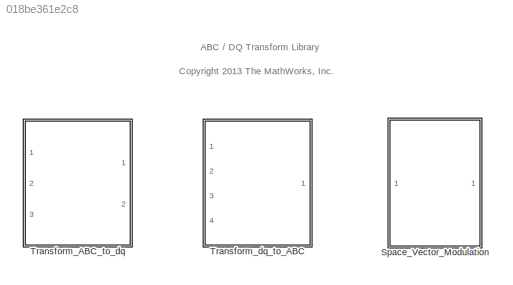
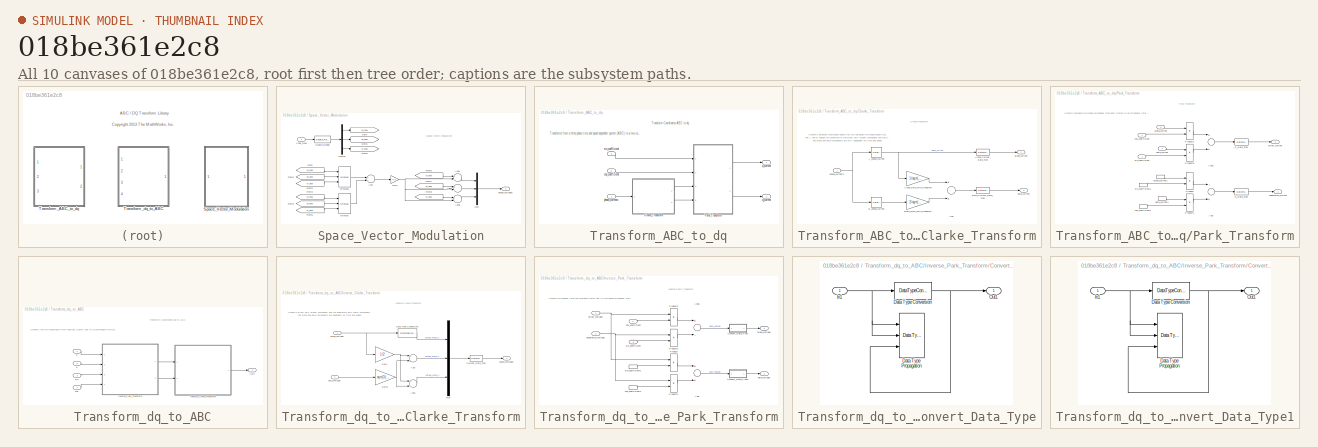
[diagram: thumbnail index - all 10 canvases of the model, root first then tree order]
MODEL slx_018be361e2c8
KIND library
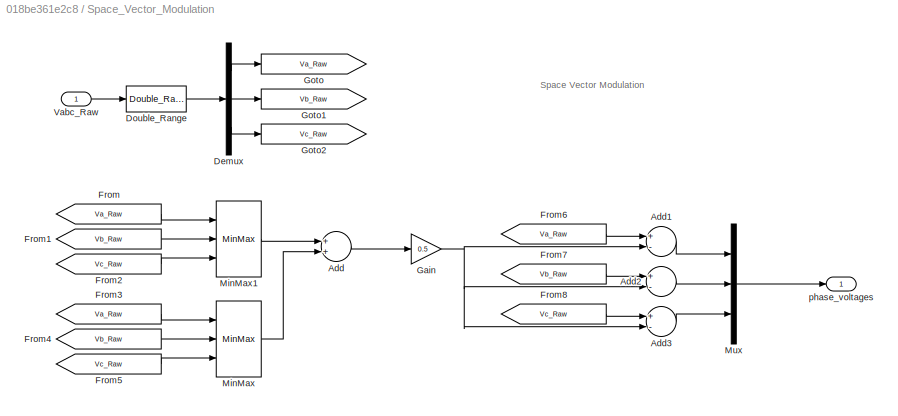
BLOCK [SubSystem] Space_Vector_Modulation
  FunctionWithSeparateData = off
  MaskHideContents = off
  MinAlgLoopOccurrences = off
  Opaque = off
  Ports = [1, 1]
  PropExecContextOutsideSubsystem = off
  RTWSystemCode = Auto
  RequestExecContextInheritance = off
  VariantControl = SpaceVectorModulation_JB
BLOCK [Sum] Space_Vector_Modulation/Add
  InputSameDT = off
  OutDataTypeStr = Inherit: Inherit via internal rule
  Ports = [2, 1]
  SaturateOnIntegerOverflow = off
BLOCK [Sum] Space_Vector_Modulation/Add1
  InputSameDT = off
  Inputs = +-
  OutDataTypeStr = Inherit: Inherit via internal rule
  Ports = [2, 1]
  SaturateOnIntegerOverflow = off
BLOCK [Sum] Space_Vector_Modulation/Add2
  InputSameDT = off
  Inputs = +-
  OutDataTypeStr = Inherit: Inherit via internal rule
  Ports = [2, 1]
  SaturateOnIntegerOverflow = off
BLOCK [Sum] Space_Vector_Modulation/Add3
  InputSameDT = off
  Inputs = +-
  OutDataTypeStr = Inherit: Inherit via internal rule
  Ports = [2, 1]
  SaturateOnIntegerOverflow = off
BLOCK [Demux] Space_Vector_Modulation/Demux
  DisplayOption = bar
  Outputs = 3
  Ports = [1, 3]
BLOCK [Reference] Space_Vector_Modulation/Double_Range  REF=libDataType/Double_Range
  FunctionWithSeparateData = off
  GeneratePreprocessorConditionals = off
  Ports = [1, 1]
  ShowPortLabels = FromPortIcon
  SourceBlock = libDataType/Double_Range
  SystemSampleTime = -1
BLOCK [From] Space_Vector_Modulation/From
  GotoTag = Va_Raw
BLOCK [From] Space_Vector_Modulation/From1
  GotoTag = Vb_Raw
BLOCK [From] Space_Vector_Modulation/From2
  GotoTag = Vc_Raw
BLOCK [From] Space_Vector_Modulation/From3
  GotoTag = Va_Raw
BLOCK [From] Space_Vector_Modulation/From4
  GotoTag = Vb_Raw
BLOCK [From] Space_Vector_Modulation/From5
  GotoTag = Vc_Raw
BLOCK [From] Space_Vector_Modulation/From6
  GotoTag = Va_Raw
BLOCK [From] Space_Vector_Modulation/From7
  GotoTag = Vb_Raw
BLOCK [From] Space_Vector_Modulation/From8
  GotoTag = Vc_Raw
BLOCK [Gain] Space_Vector_Modulation/Gain
  Gain = 0.5
  ParamDataTypeStr = Inherit: Inherit via internal rule
  SaturateOnIntegerOverflow = off
BLOCK [Goto] Space_Vector_Modulation/Goto
  GotoTag = Va_Raw
BLOCK [Goto] Space_Vector_Modulation/Goto1
  GotoTag = Vb_Raw
BLOCK [Goto] Space_Vector_Modulation/Goto2
  GotoTag = Vc_Raw
BLOCK [MinMax] Space_Vector_Modulation/MinMax
  InputSameDT = off
  Inputs = 3
  Ports = [3, 1]
  SaturateOnIntegerOverflow = off
BLOCK [MinMax] Space_Vector_Modulation/MinMax1
  Function = max
  InputSameDT = off
  Inputs = 3
  Ports = [3, 1]
  SaturateOnIntegerOverflow = off
BLOCK [Mux] Space_Vector_Modulation/Mux
  DisplayOption = bar
  Inputs = 3
  Ports = [3, 1]
BLOCK [Inport] Space_Vector_Modulation/Vabc_Raw
  IconDisplay = Port number
BLOCK [Outport] Space_Vector_Modulation/phase_voltages
  IconDisplay = Port number
BLOCK [SubSystem] Transform_ABC_to_dq
  FunctionWithSeparateData = off
  MaskHideContents = off
  MinAlgLoopOccurrences = off
  Opaque = off
  Ports = [3, 2]
  PropExecContextOutsideSubsystem = off
  RTWFcnName = TransformABCToDQ
  RTWFcnNameOpts = User specified
  RTWSystemCode = Auto
  RequestExecContextInheritance = off
  TreatAsAtomicUnit = on
BLOCK [SubSystem] Transform_ABC_to_dq/Clarke_Transform
  FunctionWithSeparateData = off
  MaskHideContents = off
  MinAlgLoopOccurrences = off
  Opaque = off
  Ports = [1, 2]
  PropExecContextOutsideSubsystem = off
  RTWSystemCode = Auto
  RequestExecContextInheritance = off
BLOCK [Selector] Transform_ABC_to_dq/Clarke_Transform/A_phase_current
  IndexMode = Zero-based
  IndexOptions = Index vector (dialog)
  Indices = 0
  InputPortWidth = 2
  OutputSizes = 1
  Ports = [1, 1]
BLOCK [Sum] Transform_ABC_to_dq/Clarke_Transform/Add
  Ports = [2, 1]
  SaturateOnIntegerOverflow = off
BLOCK [DataTypeConversion] Transform_ABC_to_dq/Clarke_Transform/Alpha_Current_Data_Type
  AttributesFormatString = --------------------------------------\nMin = %<OutMin>\nMax = %<OutMax>
  OutDataTypeStr = DT_PRECISION_LO
  OutMax = ctrlConst.CurrentMax * 4
  OutMin = -ctrlConst.CurrentMax * 4
  RndMeth = Floor
  SaturateOnIntegerOverflow = off
BLOCK [Gain] Transform_ABC_to_dq/Clarke_Transform/Alpha_Gain_With_Headrom
  Gain = 1/sqrt(3)
  OutDataTypeStr = Inherit: Inherit via internal rule
  ParamDataTypeStr = DT_PRECISION_LO
  ParamMax = (1/sqrt(3)) + (2/sqrt(3))
  ParamMin = 0
  SaturateOnIntegerOverflow = off
BLOCK [Selector] Transform_ABC_to_dq/Clarke_Transform/B_phase_current
  IndexMode = Zero-based
  IndexOptions = Index vector (dialog)
  Indices = 1
  InputPortWidth = 2
  OutputSizes = 1
  Ports = [1, 1]
BLOCK [DataTypeConversion] Transform_ABC_to_dq/Clarke_Transform/Beta_Current_Data_Type
  AttributesFormatString = --------------------------------------\nMin = %<OutMin>\nMax = %<OutMax>
  OutDataTypeStr = DT_PRECISION_LO
  OutMax = ctrlConst.CurrentMax * 4
  OutMin = -ctrlConst.CurrentMax * 4
  RndMeth = Floor
  SaturateOnIntegerOverflow = off
BLOCK [Gain] Transform_ABC_to_dq/Clarke_Transform/Beta_Gain_With_Headrom
  Gain = 2/sqrt(3)
  OutDataTypeStr = Inherit: Inherit via internal rule
  ParamDataTypeStr = DT_PRECISION_LO
  ParamMax = (1/sqrt(3)) + (2/sqrt(3))
  ParamMin = 0
  SaturateOnIntegerOverflow = off
BLOCK [Outport] Transform_ABC_to_dq/Clarke_Transform/alpha_current
  IconDisplay = Port number
BLOCK [Outport] Transform_ABC_to_dq/Clarke_Transform/beta_current
  IconDisplay = Port number
  Port = 2
BLOCK [Inport] Transform_ABC_to_dq/Clarke_Transform/phase_currents
  IconDisplay = Port number
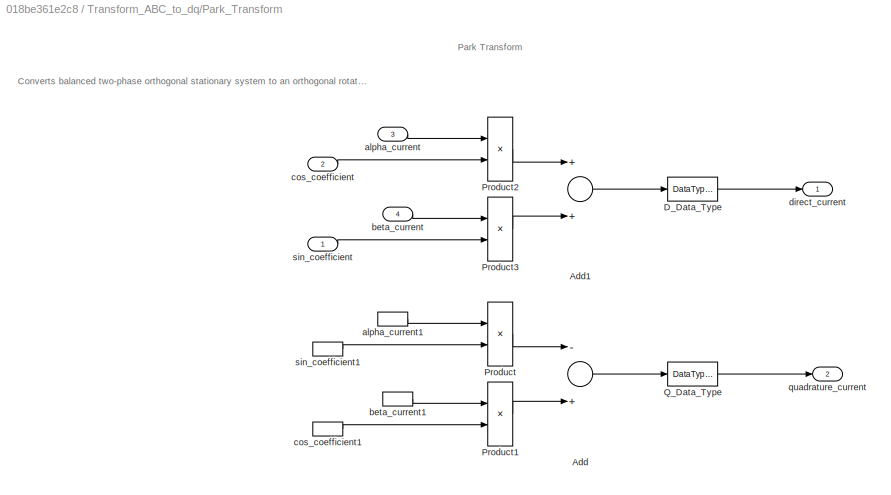
BLOCK [SubSystem] Transform_ABC_to_dq/Park_Transform
  FunctionWithSeparateData = off
  MaskHideContents = off
  MinAlgLoopOccurrences = off
  Opaque = off
  Ports = [4, 2]
  PropExecContextOutsideSubsystem = off
  RTWSystemCode = Auto
  RequestExecContextInheritance = off
BLOCK [Sum] Transform_ABC_to_dq/Park_Transform/Add
  Inputs = -+
  Ports = [2, 1]
  SaturateOnIntegerOverflow = off
BLOCK [Sum] Transform_ABC_to_dq/Park_Transform/Add1
  Ports = [2, 1]
  SaturateOnIntegerOverflow = off
BLOCK [DataTypeConversion] Transform_ABC_to_dq/Park_Transform/D_Data_Type
  AttributesFormatString = --------------------------------------\nSaturate = %<SaturateOnIntegerOverflow>\nMin = %<OutMin>\nMax = %<OutMax>
  OutDataTypeStr = DT_PRECISION_LO
  OutMax = ctrlConst.CurrentMax
  OutMin = -ctrlConst.CurrentMax
  RndMeth = Floor
BLOCK [Product] Transform_ABC_to_dq/Park_Transform/Product
  InputSameDT = off
  OutDataTypeStr = Inherit: Inherit via internal rule
  Ports = [2, 1]
  RndMeth = Simplest
  SaturateOnIntegerOverflow = off
BLOCK [Product] Transform_ABC_to_dq/Park_Transform/Product1
  InputSameDT = off
  OutDataTypeStr = Inherit: Inherit via internal rule
  Ports = [2, 1]
  RndMeth = Simplest
  SaturateOnIntegerOverflow = off
BLOCK [Product] Transform_ABC_to_dq/Park_Transform/Product2
  InputSameDT = off
  OutDataTypeStr = Inherit: Inherit via internal rule
  Ports = [2, 1]
  RndMeth = Simplest
  SaturateOnIntegerOverflow = off
BLOCK [Product] Transform_ABC_to_dq/Park_Transform/Product3
  InputSameDT = off
  OutDataTypeStr = Inherit: Inherit via internal rule
  Ports = [2, 1]
  RndMeth = Simplest
  SaturateOnIntegerOverflow = off
BLOCK [DataTypeConversion] Transform_ABC_to_dq/Park_Transform/Q_Data_Type
  AttributesFormatString = --------------------------------------\nSaturate = %<SaturateOnIntegerOverflow>\nMin = %<OutMin>\nMax = %<OutMax>
  OutDataTypeStr = DT_PRECISION_LO
  OutMax = ctrlConst.CurrentMax
  OutMin = -ctrlConst.CurrentMax
  RndMeth = Floor
BLOCK [Inport] Transform_ABC_to_dq/Park_Transform/alpha_current
  IconDisplay = Port number
  Port = 3
BLOCK [InportShadow] Transform_ABC_to_dq/Park_Transform/alpha_current1
  IconDisplay = Port number
  LatchByDelayingOutsideSignal = off
  LatchInputForFeedbackSignals = off
  Port = 3
BLOCK [Inport] Transform_ABC_to_dq/Park_Transform/beta_current
  IconDisplay = Port number
  Port = 4
BLOCK [InportShadow] Transform_ABC_to_dq/Park_Transform/beta_current1
  IconDisplay = Port number
  LatchByDelayingOutsideSignal = off
  LatchInputForFeedbackSignals = off
  Port = 4
BLOCK [Inport] Transform_ABC_to_dq/Park_Transform/cos_coefficient
  IconDisplay = Port number
  Port = 2
BLOCK [InportShadow] Transform_ABC_to_dq/Park_Transform/cos_coefficient1
  IconDisplay = Port number
  LatchByDelayingOutsideSignal = off
  LatchInputForFeedbackSignals = off
  Port = 2
BLOCK [Outport] Transform_ABC_to_dq/Park_Transform/direct_current
  IconDisplay = Port number
BLOCK [Outport] Transform_ABC_to_dq/Park_Transform/quadrature_current
  IconDisplay = Port number
  Port = 2
BLOCK [Inport] Transform_ABC_to_dq/Park_Transform/sin_coefficient
  IconDisplay = Port number
BLOCK [InportShadow] Transform_ABC_to_dq/Park_Transform/sin_coefficient1
  IconDisplay = Port number
  LatchByDelayingOutsideSignal = off
  LatchInputForFeedbackSignals = off
BLOCK [Inport] Transform_ABC_to_dq/cos_coefficient
  IconDisplay = Port number
  OutMax = 1
  OutMin = -1
  Port = 3
BLOCK [Outport] Transform_ABC_to_dq/d_current
  IconDisplay = Port number
BLOCK [Inport] Transform_ABC_to_dq/phase_currents
  IconDisplay = Port number
BLOCK [Outport] Transform_ABC_to_dq/q_current
  IconDisplay = Port number
  Port = 2
BLOCK [Inport] Transform_ABC_to_dq/sin_coefficient
  IconDisplay = Port number
  OutMax = 1
  OutMin = -1
  Port = 2
BLOCK [SubSystem] Transform_dq_to_ABC
  FunctionWithSeparateData = off
  MaskHideContents = off
  MinAlgLoopOccurrences = off
  Opaque = off
  Ports = [4, 1]
  PropExecContextOutsideSubsystem = off
  RTWFcnName = TransformDQToABCWithSVM
  RTWFcnNameOpts = User specified
  RTWSystemCode = Auto
  RequestExecContextInheritance = off
  TreatAsAtomicUnit = on
BLOCK [Outport] Transform_dq_to_ABC/ABC
  IconDisplay = Port number
BLOCK [SubSystem] Transform_dq_to_ABC/Inverse_Clarke_Transform
  FunctionWithSeparateData = off
  MaskHideContents = off
  MinAlgLoopOccurrences = off
  Opaque = off
  Ports = [2, 1]
  PropExecContextOutsideSubsystem = off
  RTWSystemCode = Reusable function
  RequestExecContextInheritance = off
  VariantControl = INVERSE_CLARKE_TRANSFORM
BLOCK [Sum] Transform_dq_to_ABC/Inverse_Clarke_Transform/Add
  InputSameDT = off
  Inputs = -+
  Ports = [2, 1]
  SaturateOnIntegerOverflow = off
BLOCK [Sum] Transform_dq_to_ABC/Inverse_Clarke_Transform/Add1
  InputSameDT = off
  Inputs = --
  Ports = [2, 1]
  SaturateOnIntegerOverflow = off
BLOCK [DataTypeConversion] Transform_dq_to_ABC/Inverse_Clarke_Transform/Current_Data_Type
  AttributesFormatString = --------------------------------------\nSaturate = %<SaturateOnIntegerOverflow>\nMin = %<OutMin>\nMax = %<OutMax>
  OutDataTypeStr = DT_PRECISION_LO
  OutMax = ctrlConst.VoltageMax /2
  OutMin = -ctrlConst.VoltageMax / 2
  RndMeth = Floor
BLOCK [DataTypeConversion] Transform_dq_to_ABC/Inverse_Clarke_Transform/Data Type Conversion
  RndMeth = Floor
  SaturateOnIntegerOverflow = off
BLOCK [Gain] Transform_dq_to_ABC/Inverse_Clarke_Transform/Gain
  Gain = 1/2
  OutDataTypeStr = Inherit: Inherit via internal rule
  ParamDataTypeStr = DT_PRECISION_LO
  ParamMax = 1/2 + sqrt(3)/2
  SaturateOnIntegerOverflow = off
BLOCK [Gain] Transform_dq_to_ABC/Inverse_Clarke_Transform/Gain1
  Gain = sqrt(3)/2
  OutDataTypeStr = Inherit: Inherit via internal rule
  ParamDataTypeStr = DT_PRECISION_LO
  ParamMax = 1/2 + sqrt(3)/2
  SaturateOnIntegerOverflow = off
BLOCK [Mux] Transform_dq_to_ABC/Inverse_Clarke_Transform/Mux
  DisplayOption = bar
  Inputs = 3
  Ports = [3, 1]
BLOCK [Inport] Transform_dq_to_ABC/Inverse_Clarke_Transform/alpha_voltage
  IconDisplay = Port number
BLOCK [Inport] Transform_dq_to_ABC/Inverse_Clarke_Transform/beta_voltage
  IconDisplay = Port number
  Port = 2
BLOCK [Outport] Transform_dq_to_ABC/Inverse_Clarke_Transform/phase_voltages
  IconDisplay = Port number
BLOCK [SubSystem] Transform_dq_to_ABC/Inverse_Park_Transform
  FunctionWithSeparateData = off
  MaskHideContents = off
  MinAlgLoopOccurrences = off
  Opaque = off
  Ports = [4, 2]
  PropExecContextOutsideSubsystem = off
  RTWSystemCode = Auto
  RequestExecContextInheritance = off
BLOCK [Sum] Transform_dq_to_ABC/Inverse_Park_Transform/Add
  Ports = [2, 1]
  SaturateOnIntegerOverflow = off
BLOCK [Sum] Transform_dq_to_ABC/Inverse_Park_Transform/Add1
  Inputs = +-
  Ports = [2, 1]
  SaturateOnIntegerOverflow = off
BLOCK [SubSystem] Transform_dq_to_ABC/Inverse_Park_Transform/Convert_Data_Type
  FunctionWithSeparateData = off
  MaskHideContents = off
  MinAlgLoopOccurrences = off
  Opaque = off
  Ports = [1, 1]
  PropExecContextOutsideSubsystem = off
  RTWSystemCode = Auto
  RequestExecContextInheritance = off
BLOCK [DataTypeConversion] Transform_dq_to_ABC/Inverse_Park_Transform/Convert_Data_Type/Data Type Conversion
  RndMeth = Floor
  SaturateOnIntegerOverflow = off
BLOCK [Reference] Transform_dq_to_ABC/Inverse_Park_Transform/Convert_Data_Type/Data Type Propagation  REF=simulink/Signal
Attributes/Data Type
Propagation
  AttributesFormatString = -------------------------------\nDT = %<PropDataType>
  BiasAdd = 0
  BiasBase = Bias1
  BiasMult = 1
  IfRefDouble = double
  IfRefSingle = single
  IsSigned = IsSigned1
  NumBitsAdd = 0
  NumBitsAllowFinal = 1:128
  NumBitsBase = NumBits1
  NumBitsMult = 0
  Ports = [3]
  PropDataType = DT_PRECISION_LO
  PropDataTypeMode = Specify via dialog
  PropScaling = 2^-10
  PropScalingMode = Inherit via propagation rule
  SlopeAdd = 0
  SlopeBase = PosRange1
  SlopeMult = 1
  SourceBlock = simulink/Signal\nAttributes/Data Type\nPropagation
  SourceType = Data Type Propagation
  ValuesUsedBestPrec = [5 -7]
BLOCK [Inport] Transform_dq_to_ABC/Inverse_Park_Transform/Convert_Data_Type/In1
  IconDisplay = Port number
BLOCK [Outport] Transform_dq_to_ABC/Inverse_Park_Transform/Convert_Data_Type/Out1
  IconDisplay = Port number
BLOCK [SubSystem] Transform_dq_to_ABC/Inverse_Park_Transform/Convert_Data_Type1
  FunctionWithSeparateData = off
  MaskHideContents = off
  MinAlgLoopOccurrences = off
  Opaque = off
  Ports = [1, 1]
  PropExecContextOutsideSubsystem = off
  RTWSystemCode = Auto
  RequestExecContextInheritance = off
BLOCK [DataTypeConversion] Transform_dq_to_ABC/Inverse_Park_Transform/Convert_Data_Type1/Data Type Conversion
  RndMeth = Floor
  SaturateOnIntegerOverflow = off
BLOCK [Reference] Transform_dq_to_ABC/Inverse_Park_Transform/Convert_Data_Type1/Data Type Propagation  REF=simulink/Signal
Attributes/Data Type
Propagation
  AttributesFormatString = -------------------------------\nDT = %<PropDataType>
  BiasAdd = 0
  BiasBase = Bias1
  BiasMult = 1
  IfRefDouble = double
  IfRefSingle = single
  IsSigned = IsSigned1
  NumBitsAdd = 0
  NumBitsAllowFinal = 1:128
  NumBitsBase = NumBits1
  NumBitsMult = 0
  Ports = [3]
  PropDataType = DT_PRECISION_LO
  PropDataTypeMode = Specify via dialog
  PropScaling = 2^-10
  PropScalingMode = Inherit via propagation rule
  SlopeAdd = 0
  SlopeBase = PosRange1
  SlopeMult = 1
  SourceBlock = simulink/Signal\nAttributes/Data Type\nPropagation
  SourceType = Data Type Propagation
  ValuesUsedBestPrec = [5 -7]
BLOCK [Inport] Transform_dq_to_ABC/Inverse_Park_Transform/Convert_Data_Type1/In1
  IconDisplay = Port number
BLOCK [Outport] Transform_dq_to_ABC/Inverse_Park_Transform/Convert_Data_Type1/Out1
  IconDisplay = Port number
BLOCK [Product] Transform_dq_to_ABC/Inverse_Park_Transform/Product
  InputSameDT = off
  OutDataTypeStr = Inherit: Inherit via internal rule
  Ports = [2, 1]
  RndMeth = Simplest
  SaturateOnIntegerOverflow = off
BLOCK [Product] Transform_dq_to_ABC/Inverse_Park_Transform/Product1
  InputSameDT = off
  OutDataTypeStr = Inherit: Inherit via internal rule
  Ports = [2, 1]
  RndMeth = Simplest
  SaturateOnIntegerOverflow = off
BLOCK [Product] Transform_dq_to_ABC/Inverse_Park_Transform/Product2
  InputSameDT = off
  OutDataTypeStr = Inherit: Inherit via internal rule
  Ports = [2, 1]
  RndMeth = Simplest
  SaturateOnIntegerOverflow = off
BLOCK [Product] Transform_dq_to_ABC/Inverse_Park_Transform/Product3
  InputSameDT = off
  OutDataTypeStr = Inherit: Inherit via internal rule
  Ports = [2, 1]
  RndMeth = Simplest
  SaturateOnIntegerOverflow = off
BLOCK [Outport] Transform_dq_to_ABC/Inverse_Park_Transform/alpha_voltage
  IconDisplay = Port number
BLOCK [Outport] Transform_dq_to_ABC/Inverse_Park_Transform/beta_voltage
  IconDisplay = Port number
  Port = 2
BLOCK [Inport] Transform_dq_to_ABC/Inverse_Park_Transform/cos_coefficient
  IconDisplay = Port number
  Port = 4
BLOCK [InportShadow] Transform_dq_to_ABC/Inverse_Park_Transform/cos_coefficient1
  IconDisplay = Port number
  LatchByDelayingOutsideSignal = off
  LatchInputForFeedbackSignals = off
  Port = 4
BLOCK [Inport] Transform_dq_to_ABC/Inverse_Park_Transform/direct_voltage
  IconDisplay = Port number
BLOCK [Inport] Transform_dq_to_ABC/Inverse_Park_Transform/quadrature_voltage
  IconDisplay = Port number
  Port = 2
BLOCK [Inport] Transform_dq_to_ABC/Inverse_Park_Transform/sin_coefficient
  IconDisplay = Port number
  Port = 3
BLOCK [InportShadow] Transform_dq_to_ABC/Inverse_Park_Transform/sin_coefficient1
  IconDisplay = Port number
  LatchByDelayingOutsideSignal = off
  LatchInputForFeedbackSignals = off
  Port = 3
BLOCK [Inport] Transform_dq_to_ABC/cos
  IconDisplay = Port number
  OutMax = 1
  OutMin = -1
  Port = 4
BLOCK [Inport] Transform_dq_to_ABC/d
  IconDisplay = Port number
BLOCK [Inport] Transform_dq_to_ABC/q
  IconDisplay = Port number
  Port = 2
BLOCK [Inport] Transform_dq_to_ABC/sin
  IconDisplay = Port number
  OutMax = 1
  OutMin = -1
  Port = 3
ANNOTATION (root): ABC / DQ Transform Library
ANNOTATION (root): <copyright redacted>
ANNOTATION Space_Vector_Modulation: Space Vector Modulation
ANNOTATION Transform_ABC_to_dq: Transform Coordinates ABC to dq
ANNOTATION Transform_ABC_to_dq: Transforms from a three-phase time and speed dependent system (ABC) to a two coordinate time invariant system (dq).
ANNOTATION Transform_ABC_to_dq/Clarke_Transform: Clarke Transform
ANNOTATION Transform_ABC_to_dq/Clarke_Transform: Converts balanced three-phase quantities into balanced two-phase quantities. The A and B phases are converted to the direct axis (alpha) component and the quadrature axis (beta) component. The alpha and beta components are still dependent on time and speed.
ANNOTATION Transform_ABC_to_dq/Park_Transform: Converts balanced two-phase orthogonal stationary system to an orthogonal rotating reference frame.
ANNOTATION Transform_ABC_to_dq/Park_Transform: Park Transform
ANNOTATION Transform_dq_to_ABC: Converts the two coordinate time invariant system (dq) to a three-phase time and speed dependent system (ABC).
ANNOTATION Transform_dq_to_ABC: Transform Coordinates dq to ABC
ANNOTATION Transform_dq_to_ABC/Inverse_Clarke_Transform: Converts direct axis (alpha) component and the quadrature axis (beta) component to balanced three-phase quantities The alpha and beta components are dependent on time and speed.
ANNOTATION Transform_dq_to_ABC/Inverse_Clarke_Transform: Inverse Clarke Transform
ANNOTATION Transform_dq_to_ABC/Inverse_Park_Transform: Converts orthogonal rotating reference frame (dq) to two-phase orthogonal stationary reference frame (alpha, beta)
ANNOTATION Transform_dq_to_ABC/Inverse_Park_Transform: Inverse Park Transform
LINE Space_Vector_Modulation/Add1:1 -> Space_Vector_Modulation/Mux:1
LINE Space_Vector_Modulation/Add2:1 -> Space_Vector_Modulation/Mux:2
LINE Space_Vector_Modulation/Add3:1 -> Space_Vector_Modulation/Mux:3
LINE Space_Vector_Modulation/Add:1 -> Space_Vector_Modulation/Gain:1
LINE Space_Vector_Modulation/Demux:1 -> Space_Vector_Modulation/Goto:1
LINE Space_Vector_Modulation/Demux:2 -> Space_Vector_Modulation/Goto1:1
LINE Space_Vector_Modulation/Demux:3 -> Space_Vector_Modulation/Goto2:1
LINE Space_Vector_Modulation/Double_Range:1 -> Space_Vector_Modulation/Demux:1
LINE Space_Vector_Modulation/From1:1 -> Space_Vector_Modulation/MinMax1:2
LINE Space_Vector_Modulation/From2:1 -> Space_Vector_Modulation/MinMax1:3
LINE Space_Vector_Modulation/From3:1 -> Space_Vector_Modulation/MinMax:1
LINE Space_Vector_Modulation/From4:1 -> Space_Vector_Modulation/MinMax:2
LINE Space_Vector_Modulation/From5:1 -> Space_Vector_Modulation/MinMax:3
LINE Space_Vector_Modulation/From6:1 -> Space_Vector_Modulation/Add1:1
LINE Space_Vector_Modulation/From7:1 -> Space_Vector_Modulation/Add2:1
LINE Space_Vector_Modulation/From8:1 -> Space_Vector_Modulation/Add3:1
LINE Space_Vector_Modulation/From:1 -> Space_Vector_Modulation/MinMax1:1
NET Space_Vector_Modulation/Gain:1 -> Space_Vector_Modulation/Add1:2, Space_Vector_Modulation/Add2:2, Space_Vector_Modulation/Add3:2
LINE Space_Vector_Modulation/MinMax1:1 -> Space_Vector_Modulation/Add:1
LINE Space_Vector_Modulation/MinMax:1 -> Space_Vector_Modulation/Add:2
LINE Space_Vector_Modulation/Mux:1 -> Space_Vector_Modulation/phase_voltages:1
LINE Space_Vector_Modulation/Vabc_Raw:1 -> Space_Vector_Modulation/Double_Range:1
NET Transform_ABC_to_dq/Clarke_Transform/A_phase_current:1 -> Transform_ABC_to_dq/Clarke_Transform/Alpha_Current_Data_Type:1, Transform_ABC_to_dq/Clarke_Transform/Alpha_Gain_With_Headrom:1
LINE Transform_ABC_to_dq/Clarke_Transform/Add:1 -> Transform_ABC_to_dq/Clarke_Transform/Beta_Current_Data_Type:1
LINE Transform_ABC_to_dq/Clarke_Transform/Alpha_Current_Data_Type:1 -> Transform_ABC_to_dq/Clarke_Transform/alpha_current:1
LINE Transform_ABC_to_dq/Clarke_Transform/Alpha_Gain_With_Headrom:1 -> Transform_ABC_to_dq/Clarke_Transform/Add:1
LINE Transform_ABC_to_dq/Clarke_Transform/B_phase_current:1 -> Transform_ABC_to_dq/Clarke_Transform/Beta_Gain_With_Headrom:1
LINE Transform_ABC_to_dq/Clarke_Transform/Beta_Current_Data_Type:1 -> Transform_ABC_to_dq/Clarke_Transform/beta_current:1
LINE Transform_ABC_to_dq/Clarke_Transform/Beta_Gain_With_Headrom:1 -> Transform_ABC_to_dq/Clarke_Transform/Add:2
NET Transform_ABC_to_dq/Clarke_Transform/phase_currents:1 -> Transform_ABC_to_dq/Clarke_Transform/A_phase_current:1, Transform_ABC_to_dq/Clarke_Transform/B_phase_current:1
LINE Transform_ABC_to_dq/Clarke_Transform:1 -> Transform_ABC_to_dq/Park_Transform:3
LINE Transform_ABC_to_dq/Clarke_Transform:2 -> Transform_ABC_to_dq/Park_Transform:4
LINE Transform_ABC_to_dq/Park_Transform/Add1:1 -> Transform_ABC_to_dq/Park_Transform/D_Data_Type:1
LINE Transform_ABC_to_dq/Park_Transform/Add:1 -> Transform_ABC_to_dq/Park_Transform/Q_Data_Type:1
LINE Transform_ABC_to_dq/Park_Transform/D_Data_Type:1 -> Transform_ABC_to_dq/Park_Transform/direct_current:1
LINE Transform_ABC_to_dq/Park_Transform/Product1:1 -> Transform_ABC_to_dq/Park_Transform/Add:2
LINE Transform_ABC_to_dq/Park_Transform/Product2:1 -> Transform_ABC_to_dq/Park_Transform/Add1:1
LINE Transform_ABC_to_dq/Park_Transform/Product3:1 -> Transform_ABC_to_dq/Park_Transform/Add1:2
LINE Transform_ABC_to_dq/Park_Transform/Product:1 -> Transform_ABC_to_dq/Park_Transform/Add:1
LINE Transform_ABC_to_dq/Park_Transform/Q_Data_Type:1 -> Transform_ABC_to_dq/Park_Transform/quadrature_current:1
LINE Transform_ABC_to_dq/Park_Transform/alpha_current1:1 -> Transform_ABC_to_dq/Park_Transform/Product:1
LINE Transform_ABC_to_dq/Park_Transform/alpha_current:1 -> Transform_ABC_to_dq/Park_Transform/Product2:1
LINE Transform_ABC_to_dq/Park_Transform/beta_current1:1 -> Transform_ABC_to_dq/Park_Transform/Product1:1
LINE Transform_ABC_to_dq/Park_Transform/beta_current:1 -> Transform_ABC_to_dq/Park_Transform/Product3:1
LINE Transform_ABC_to_dq/Park_Transform/cos_coefficient1:1 -> Transform_ABC_to_dq/Park_Transform/Product1:2
LINE Transform_ABC_to_dq/Park_Transform/cos_coefficient:1 -> Transform_ABC_to_dq/Park_Transform/Product2:2
LINE Transform_ABC_to_dq/Park_Transform/sin_coefficient1:1 -> Transform_ABC_to_dq/Park_Transform/Product:2
LINE Transform_ABC_to_dq/Park_Transform/sin_coefficient:1 -> Transform_ABC_to_dq/Park_Transform/Product3:2
LINE Transform_ABC_to_dq/Park_Transform:1 -> Transform_ABC_to_dq/d_current:1
LINE Transform_ABC_to_dq/Park_Transform:2 -> Transform_ABC_to_dq/q_current:1
LINE Transform_ABC_to_dq/cos_coefficient:1 -> Transform_ABC_to_dq/Park_Transform:2
LINE Transform_ABC_to_dq/phase_currents:1 -> Transform_ABC_to_dq/Clarke_Transform:1
LINE Transform_ABC_to_dq/sin_coefficient:1 -> Transform_ABC_to_dq/Park_Transform:1
LINE Transform_dq_to_ABC/Inverse_Clarke_Transform/Add1:1 -> Transform_dq_to_ABC/Inverse_Clarke_Transform/Mux:3
LINE Transform_dq_to_ABC/Inverse_Clarke_Transform/Add:1 -> Transform_dq_to_ABC/Inverse_Clarke_Transform/Mux:2
LINE Transform_dq_to_ABC/Inverse_Clarke_Transform/Current_Data_Type:1 -> Transform_dq_to_ABC/Inverse_Clarke_Transform/phase_voltages:1
LINE Transform_dq_to_ABC/Inverse_Clarke_Transform/Data Type Conversion:1 -> Transform_dq_to_ABC/Inverse_Clarke_Transform/Mux:1
NET Transform_dq_to_ABC/Inverse_Clarke_Transform/Gain1:1 -> Transform_dq_to_ABC/Inverse_Clarke_Transform/Add1:2, Transform_dq_to_ABC/Inverse_Clarke_Transform/Add:2
NET Transform_dq_to_ABC/Inverse_Clarke_Transform/Gain:1 -> Transform_dq_to_ABC/Inverse_Clarke_Transform/Add1:1, Transform_dq_to_ABC/Inverse_Clarke_Transform/Add:1
LINE Transform_dq_to_ABC/Inverse_Clarke_Transform/Mux:1 -> Transform_dq_to_ABC/Inverse_Clarke_Transform/Current_Data_Type:1
NET Transform_dq_to_ABC/Inverse_Clarke_Transform/alpha_voltage:1 -> Transform_dq_to_ABC/Inverse_Clarke_Transform/Data Type Conversion:1, Transform_dq_to_ABC/Inverse_Clarke_Transform/Gain:1
LINE Transform_dq_to_ABC/Inverse_Clarke_Transform/beta_voltage:1 -> Transform_dq_to_ABC/Inverse_Clarke_Transform/Gain1:1
LINE Transform_dq_to_ABC/Inverse_Clarke_Transform:1 -> Transform_dq_to_ABC/ABC:1
LINE Transform_dq_to_ABC/Inverse_Park_Transform/Add1:1 -> Transform_dq_to_ABC/Inverse_Park_Transform/Convert_Data_Type:1
LINE Transform_dq_to_ABC/Inverse_Park_Transform/Add:1 -> Transform_dq_to_ABC/Inverse_Park_Transform/Convert_Data_Type1:1
NET Transform_dq_to_ABC/Inverse_Park_Transform/Convert_Data_Type/Data Type Conversion:1 -> Transform_dq_to_ABC/Inverse_Park_Transform/Convert_Data_Type/Data Type Propagation:3, Transform_dq_to_ABC/Inverse_Park_Transform/Convert_Data_Type/Out1:1
NET Transform_dq_to_ABC/Inverse_Park_Transform/Convert_Data_Type/In1:1 -> Transform_dq_to_ABC/Inverse_Park_Transform/Convert_Data_Type/Data Type Conversion:1, Transform_dq_to_ABC/Inverse_Park_Transform/Convert_Data_Type/Data Type Propagation:1, Transform_dq_to_ABC/Inverse_Park_Transform/Convert_Data_Type/Data Type Propagation:2
NET Transform_dq_to_ABC/Inverse_Park_Transform/Convert_Data_Type1/Data Type Conversion:1 -> Transform_dq_to_ABC/Inverse_Park_Transform/Convert_Data_Type1/Data Type Propagation:3, Transform_dq_to_ABC/Inverse_Park_Transform/Convert_Data_Type1/Out1:1
NET Transform_dq_to_ABC/Inverse_Park_Transform/Convert_Data_Type1/In1:1 -> Transform_dq_to_ABC/Inverse_Park_Transform/Convert_Data_Type1/Data Type Conversion:1, Transform_dq_to_ABC/Inverse_Park_Transform/Convert_Data_Type1/Data Type Propagation:1, Transform_dq_to_ABC/Inverse_Park_Transform/Convert_Data_Type1/Data Type Propagation:2
LINE Transform_dq_to_ABC/Inverse_Park_Transform/Convert_Data_Type1:1 -> Transform_dq_to_ABC/Inverse_Park_Transform/beta_voltage:1
LINE Transform_dq_to_ABC/Inverse_Park_Transform/Convert_Data_Type:1 -> Transform_dq_to_ABC/Inverse_Park_Transform/alpha_voltage:1
LINE Transform_dq_to_ABC/Inverse_Park_Transform/Product1:1 -> Transform_dq_to_ABC/Inverse_Park_Transform/Add:2
LINE Transform_dq_to_ABC/Inverse_Park_Transform/Product2:1 -> Transform_dq_to_ABC/Inverse_Park_Transform/Add1:1
LINE Transform_dq_to_ABC/Inverse_Park_Transform/Product3:1 -> Transform_dq_to_ABC/Inverse_Park_Transform/Add1:2
LINE Transform_dq_to_ABC/Inverse_Park_Transform/Product:1 -> Transform_dq_to_ABC/Inverse_Park_Transform/Add:1
LINE Transform_dq_to_ABC/Inverse_Park_Transform/cos_coefficient1:1 -> Transform_dq_to_ABC/Inverse_Park_Transform/Product1:2
LINE Transform_dq_to_ABC/Inverse_Park_Transform/cos_coefficient:1 -> Transform_dq_to_ABC/Inverse_Park_Transform/Product2:2
NET Transform_dq_to_ABC/Inverse_Park_Transform/direct_voltage:1 -> Transform_dq_to_ABC/Inverse_Park_Transform/Product2:1, Transform_dq_to_ABC/Inverse_Park_Transform/Product:1
NET Transform_dq_to_ABC/Inverse_Park_Transform/quadrature_voltage:1 -> Transform_dq_to_ABC/Inverse_Park_Transform/Product1:1, Transform_dq_to_ABC/Inverse_Park_Transform/Product3:1
LINE Transform_dq_to_ABC/Inverse_Park_Transform/sin_coefficient1:1 -> Transform_dq_to_ABC/Inverse_Park_Transform/Product:2
LINE Transform_dq_to_ABC/Inverse_Park_Transform/sin_coefficient:1 -> Transform_dq_to_ABC/Inverse_Park_Transform/Product3:2
LINE Transform_dq_to_ABC/Inverse_Park_Transform:1 -> Transform_dq_to_ABC/Inverse_Clarke_Transform:1
LINE Transform_dq_to_ABC/Inverse_Park_Transform:2 -> Transform_dq_to_ABC/Inverse_Clarke_Transform:2
LINE Transform_dq_to_ABC/cos:1 -> Transform_dq_to_ABC/Inverse_Park_Transform:4
LINE Transform_dq_to_ABC/d:1 -> Transform_dq_to_ABC/Inverse_Park_Transform:1
LINE Transform_dq_to_ABC/q:1 -> Transform_dq_to_ABC/Inverse_Park_Transform:2
LINE Transform_dq_to_ABC/sin:1 -> Transform_dq_to_ABC/Inverse_Park_Transform:3
note: NET lines group one-source signal fan-out (src -> all destinations, sorted); 1:1 wires keep LINE
